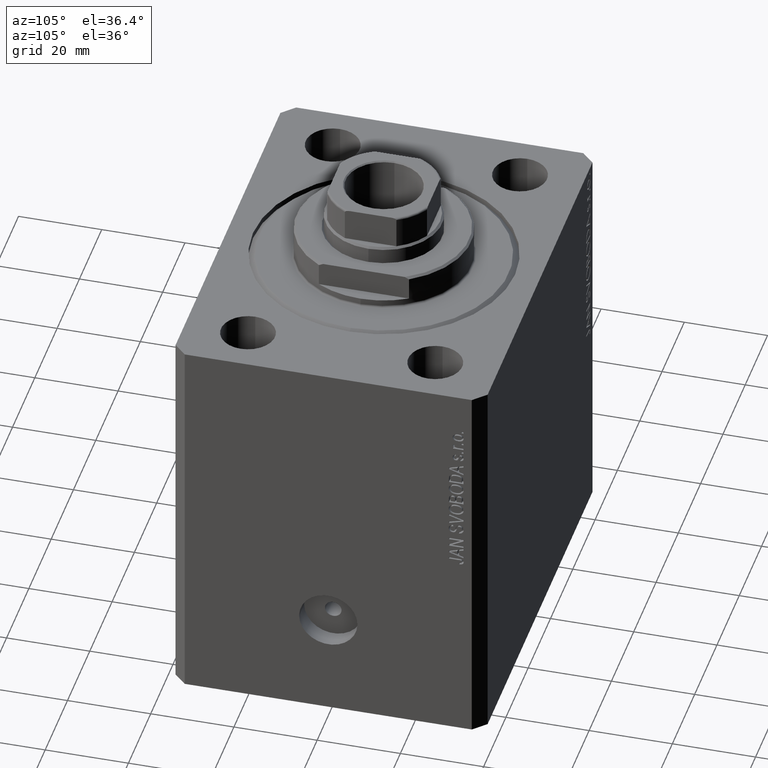
[diagram: clean part render]
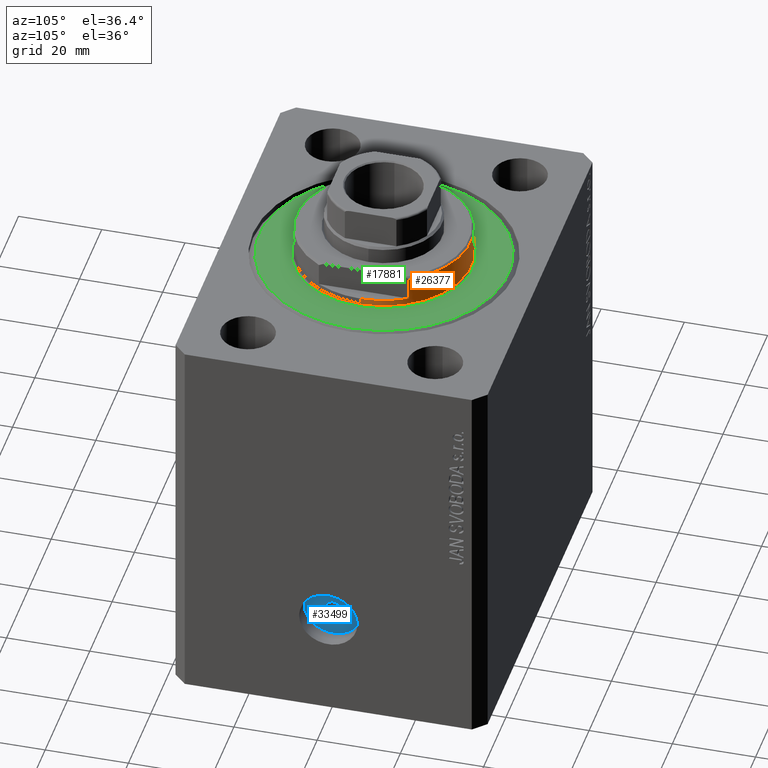
[diagram: same view with three faces highlighted in distinct colors, each labeled with its STEP entity id]
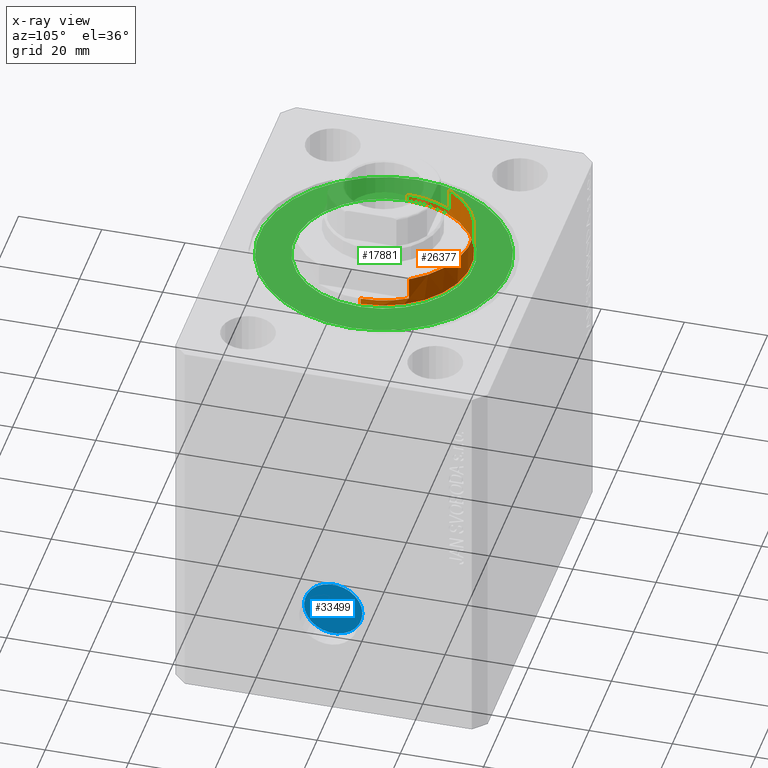
[diagram: x-ray of the same camera — body ghosted, the three highlighted faces saturated]
A machine part, auxiliary view with three faces highlighted in distinct colors.
The next image is the same camera in x-ray (body ghosted, the three faces saturated) — at least one of them is partly hidden behind the body in this view.
Their STEP definitions:

[orange] entity #26377 — the highlighted cylindrical surface (partial cylindrical patch) has radius 21 mm, axis along (0, 0, -1).
#318 = CARTESIAN_POINT ( 'NONE',  ( 18.00000000000000000, 10.81665382639197048, -2.000000000000000000 ) ) ;
#389 = DIRECTION ( 'NONE',  ( 1.000000000000000000, 0.000000000000000000, 0.000000000000000000 ) ) ;
#803 = VERTEX_POINT ( 'NONE', #26366 ) ;
#1753 = CARTESIAN_POINT ( 'NONE',  ( -18.00000000000000000, 10.81665382639197048, -7.499999999999989342 ) ) ;
#1844 = LINE ( 'NONE', #29599, #34539 ) ;
#1911 = EDGE_CURVE ( 'NONE', #24585, #28411, #6616, .T. ) ;
#2023 = DIRECTION ( 'NONE',  ( -0.000000000000000000, -0.000000000000000000, 1.000000000000000000 ) ) ;
#2455 = EDGE_CURVE ( 'NONE', #33654, #23959, #20351, .T. ) ;
#2980 = CARTESIAN_POINT ( 'NONE',  ( 21.00000000000000000, 0.000000000000000000, -8.000000000000000000 ) ) ;
#4105 = EDGE_CURVE ( 'NONE', #803, #23959, #41937, .T. ) ;
#5528 = CARTESIAN_POINT ( 'NONE',  ( 0.000000000000000000, 0.000000000000000000, -7.499999999999989342 ) ) ;
#6432 = ORIENTED_EDGE ( 'NONE', *, *, #43718, .F. ) ;
#6557 = VECTOR ( 'NONE', #2023, 1000.000000000000000 ) ;
#6616 = CIRCLE ( 'NONE', #22482, 21.00000000000000000 ) ;
#6709 = CARTESIAN_POINT ( 'NONE',  ( 21.00000000000000000, 0.000000000000000000, -0.5000000000000004441 ) ) ;
#7959 = CYLINDRICAL_SURFACE ( 'NONE', #19219, 21.00000000000000000 ) ;
#10887 = DIRECTION ( 'NONE',  ( -0.000000000000000000, -0.000000000000000000, 1.000000000000000000 ) ) ;
#11112 = CARTESIAN_POINT ( 'NONE',  ( 0.000000000000000000, 0.000000000000000000, -8.000000000000000000 ) ) ;
#11609 = CIRCLE ( 'NONE', #34631, 21.00000000000000000 ) ;
#13763 = CIRCLE ( 'NONE', #23136, 21.00000000000000000 ) ;
#15532 = CARTESIAN_POINT ( 'NONE',  ( 0.000000000000000000, 0.000000000000000000, -2.000000000000000000 ) ) ;
#16074 = ORIENTED_EDGE ( 'NONE', *, *, #2455, .F. ) ;
#16144 = DIRECTION ( 'NONE',  ( 0.000000000000000000, 0.000000000000000000, 1.000000000000000000 ) ) ;
#16975 = DIRECTION ( 'NONE',  ( -1.000000000000000000, 0.000000000000000000, 0.000000000000000000 ) ) ;
#19219 = AXIS2_PLACEMENT_3D ( 'NONE', #11112, #10887, #24691 ) ;
#20351 = LINE ( 'NONE', #2980, #25359 ) ;
#21543 = ORIENTED_EDGE ( 'NONE', *, *, #33029, .T. ) ;
#22074 = DIRECTION ( 'NONE',  ( 0.000000000000000000, 0.000000000000000000, -1.000000000000000000 ) ) ;
#22482 = AXIS2_PLACEMENT_3D ( 'NONE', #5528, #16144, #29901 ) ;
#22529 = AXIS2_PLACEMENT_3D ( 'NONE', #37809, #31292, #389 ) ;
#23023 = VERTEX_POINT ( 'NONE', #318 ) ;
#23136 = AXIS2_PLACEMENT_3D ( 'NONE', #27139, #26695, #16975 ) ;
#23208 = CARTESIAN_POINT ( 'NONE',  ( -21.00000000000000000, 2.571758278209441661E-15, -8.000000000000000000 ) ) ;
#23291 = ORIENTED_EDGE ( 'NONE', *, *, #44239, .F. ) ;
#23459 = CARTESIAN_POINT ( 'NONE',  ( 18.00000000000000000, 10.81665382639197048, -7.499999999999988454 ) ) ;
#23523 = ORIENTED_EDGE ( 'NONE', *, *, #43296, .T. ) ;
#23959 = VERTEX_POINT ( 'NONE', #6709 ) ;
#24268 = ORIENTED_EDGE ( 'NONE', *, *, #4105, .T. ) ;
#24585 = VERTEX_POINT ( 'NONE', #23459 ) ;
#24691 = DIRECTION ( 'NONE',  ( 1.000000000000000000, 0.000000000000000000, 0.000000000000000000 ) ) ;
#24801 = VERTEX_POINT ( 'NONE', #39384 ) ;
#25359 = VECTOR ( 'NONE', #37906, 1000.000000000000000 ) ;
#25959 = DIRECTION ( 'NONE',  ( -0.000000000000000000, -0.000000000000000000, 1.000000000000000000 ) ) ;
#26202 = LINE ( 'NONE', #43483, #6557 ) ;
#26239 = DIRECTION ( 'NONE',  ( -0.000000000000000000, -0.000000000000000000, 1.000000000000000000 ) ) ;
#26366 = CARTESIAN_POINT ( 'NONE',  ( -21.00000000000000000, 2.571758278209441661E-15, -0.5000000000000004441 ) ) ;
#26377 = ADVANCED_FACE ( 'NONE', ( #41763 ), #7959, .T. ) ;
#26695 = DIRECTION ( 'NONE',  ( 0.000000000000000000, 0.000000000000000000, -1.000000000000000000 ) ) ;
#27139 = CARTESIAN_POINT ( 'NONE',  ( 0.000000000000000000, 0.000000000000000000, -2.000000000000000000 ) ) ;
#28331 = CARTESIAN_POINT ( 'NONE',  ( -18.00000000000000000, 10.81665382639197048, -2.000000000000000000 ) ) ;
#28411 = VERTEX_POINT ( 'NONE', #1753 ) ;
#28836 = DIRECTION ( 'NONE',  ( -1.000000000000000000, 0.000000000000000000, 0.000000000000000000 ) ) ;
#29599 = CARTESIAN_POINT ( 'NONE',  ( 18.00000000000000000, 10.81665382639197048, -8.000000000000000000 ) ) ;
#29901 = DIRECTION ( 'NONE',  ( -1.000000000000000000, 0.000000000000000000, 0.000000000000000000 ) ) ;
#31292 = DIRECTION ( 'NONE',  ( -0.000000000000000000, -0.000000000000000000, -1.000000000000000000 ) ) ;
#33029 = EDGE_CURVE ( 'NONE', #24801, #803, #33320, .T. ) ;
#33320 = LINE ( 'NONE', #23208, #43143 ) ;
#33654 = VERTEX_POINT ( 'NONE', #39200 ) ;
#34539 = VECTOR ( 'NONE', #26239, 1000.000000000000000 ) ;
#34631 = AXIS2_PLACEMENT_3D ( 'NONE', #15532, #22074, #28836 ) ;
#35396 = VERTEX_POINT ( 'NONE', #28331 ) ;
#35867 = EDGE_CURVE ( 'NONE', #24585, #23023, #1844, .T. ) ;
#37809 = CARTESIAN_POINT ( 'NONE',  ( 0.000000000000000000, 0.000000000000000000, -0.5000000000000004441 ) ) ;
#37906 = DIRECTION ( 'NONE',  ( -0.000000000000000000, -0.000000000000000000, 1.000000000000000000 ) ) ;
#38215 = ORIENTED_EDGE ( 'NONE', *, *, #1911, .T. ) ;
#38542 = ORIENTED_EDGE ( 'NONE', *, *, #35867, .F. ) ;
#39200 = CARTESIAN_POINT ( 'NONE',  ( 21.00000000000000000, 0.000000000000000000, -2.000000000000000000 ) ) ;
#39384 = CARTESIAN_POINT ( 'NONE',  ( -21.00000000000000000, 2.571758278209441661E-15, -2.000000000000000000 ) ) ;
#40691 = EDGE_LOOP ( 'NONE', ( #6432, #21543, #24268, #16074, #23291, #38542, #38215, #23523 ) ) ;
#41763 = FACE_OUTER_BOUND ( 'NONE', #40691, .T. ) ;
#41937 = CIRCLE ( 'NONE', #22529, 21.00000000000000000 ) ;
#43143 = VECTOR ( 'NONE', #25959, 1000.000000000000000 ) ;
#43296 = EDGE_CURVE ( 'NONE', #28411, #35396, #26202, .T. ) ;
#43483 = CARTESIAN_POINT ( 'NONE',  ( -18.00000000000000000, 10.81665382639197048, -8.000000000000000000 ) ) ;
#43718 = EDGE_CURVE ( 'NONE', #24801, #35396, #13763, .T. ) ;
#44239 = EDGE_CURVE ( 'NONE', #23023, #33654, #11609, .T. ) ;

[blue] entity #33499 — the highlighted planar face has unit normal (1, -0, 0).
#824 = AXIS2_PLACEMENT_3D ( 'NONE', #44391, #43489, #2251 ) ;
#1199 = CARTESIAN_POINT ( 'NONE',  ( 45.50000000000026290, 1.042961394196528243E-13, -70.00000000000000000 ) ) ;
#2251 = DIRECTION ( 'NONE',  ( 1.288651725011342390E-14, 1.000000000000000000, 0.000000000000000000 ) ) ;
#2262 = DIRECTION ( 'NONE',  ( 1.000000000000000000, -1.334402673828349134E-14, 0.000000000000000000 ) ) ;
#2810 = EDGE_CURVE ( 'NONE', #14211, #32805, #13830, .T. ) ;
#5010 = ORIENTED_EDGE ( 'NONE', *, *, #30038, .T. ) ;
#7057 = CIRCLE ( 'NONE', #22197, 7.000000000000000000 ) ;
#7190 = ORIENTED_EDGE ( 'NONE', *, *, #44069, .T. ) ;
#9047 = FACE_OUTER_BOUND ( 'NONE', #12307, .T. ) ;
#9267 = DIRECTION ( 'NONE',  ( 1.334402673828349134E-14, 1.000000000000000000, 0.000000000000000000 ) ) ;
#11245 = CARTESIAN_POINT ( 'NONE',  ( 45.50000000000026290, 1.042961394196528243E-13, -70.00000000000000000 ) ) ;
#11349 = DIRECTION ( 'NONE',  ( 1.000000000000000000, -1.334402673828349134E-14, 0.000000000000000000 ) ) ;
#12202 = EDGE_LOOP ( 'NONE', ( #14406, #19539 ) ) ;
#12307 = EDGE_LOOP ( 'NONE', ( #7190, #5010 ) ) ;
#12745 = AXIS2_PLACEMENT_3D ( 'NONE', #1199, #11349, #25598 ) ;
#13830 = CIRCLE ( 'NONE', #32539, 1.999999999999996225 ) ;
#14211 = VERTEX_POINT ( 'NONE', #29368 ) ;
#14406 = ORIENTED_EDGE ( 'NONE', *, *, #2810, .F. ) ;
#18979 = DIRECTION ( 'NONE',  ( 1.288651725011342390E-14, 1.000000000000000000, 0.000000000000000000 ) ) ;
#19539 = ORIENTED_EDGE ( 'NONE', *, *, #23095, .F. ) ;
#20831 = AXIS2_PLACEMENT_3D ( 'NONE', #26455, #40125, #9267 ) ;
#22197 = AXIS2_PLACEMENT_3D ( 'NONE', #42631, #2262, #18979 ) ;
#22829 = PLANE ( 'NONE',  #20831 ) ;
#23050 = FACE_BOUND ( 'NONE', #12202, .T. ) ;
#23095 = EDGE_CURVE ( 'NONE', #32805, #14211, #35066, .T. ) ;
#25045 = DIRECTION ( 'NONE',  ( 1.387778780781448358E-14, 1.000000000000000000, 0.000000000000000000 ) ) ;
#25333 = CIRCLE ( 'NONE', #824, 7.000000000000000000 ) ;
#25598 = DIRECTION ( 'NONE',  ( 1.387778780781448358E-14, 1.000000000000000000, 0.000000000000000000 ) ) ;
#25624 = CARTESIAN_POINT ( 'NONE',  ( 45.50000000000035527, 7.000000000000103917, -70.00000000000000000 ) ) ;
#26455 = CARTESIAN_POINT ( 'NONE',  ( 45.50000000000026290, 1.042961394196528117E-13, -70.00000000000000000 ) ) ;
#26750 = CARTESIAN_POINT ( 'NONE',  ( 45.50000000000017053, -6.999999999999896083, -70.00000000000000000 ) ) ;
#28408 = DIRECTION ( 'NONE',  ( 1.000000000000000000, -1.334402673828349134E-14, 0.000000000000000000 ) ) ;
#29368 = CARTESIAN_POINT ( 'NONE',  ( 45.50000000000029132, 2.000000000000100364, -70.00000000000000000 ) ) ;
#30038 = EDGE_CURVE ( 'NONE', #43573, #40171, #7057, .T. ) ;
#32539 = AXIS2_PLACEMENT_3D ( 'NONE', #11245, #28408, #25045 ) ;
#32805 = VERTEX_POINT ( 'NONE', #43115 ) ;
#33499 = ADVANCED_FACE ( 'NONE', ( #23050, #9047 ), #22829, .T. ) ;
#35066 = CIRCLE ( 'NONE', #12745, 1.999999999999996225 ) ;
#40125 = DIRECTION ( 'NONE',  ( 1.000000000000000000, -1.334402673828349134E-14, 0.000000000000000000 ) ) ;
#40171 = VERTEX_POINT ( 'NONE', #25624 ) ;
#42631 = CARTESIAN_POINT ( 'NONE',  ( 45.50000000000026290, 1.042961394196528117E-13, -70.00000000000000000 ) ) ;
#43115 = CARTESIAN_POINT ( 'NONE',  ( 45.50000000000023448, -1.999999999999892086, -70.00000000000000000 ) ) ;
#43489 = DIRECTION ( 'NONE',  ( 1.000000000000000000, -1.334402673828349134E-14, 0.000000000000000000 ) ) ;
#43573 = VERTEX_POINT ( 'NONE', #26750 ) ;
#44069 = EDGE_CURVE ( 'NONE', #40171, #43573, #25333, .T. ) ;
#44391 = CARTESIAN_POINT ( 'NONE',  ( 45.50000000000026290, 1.042961394196528117E-13, -70.00000000000000000 ) ) ;

[green] entity #17881 — the highlighted planar face has unit normal (0, 0, -1).
#1150 = VERTEX_POINT ( 'NONE', #35955 ) ;
#1826 = AXIS2_PLACEMENT_3D ( 'NONE', #12532, #36394, #3037 ) ;
#3037 = DIRECTION ( 'NONE',  ( 1.000000000000000000, 0.000000000000000000, 0.000000000000000000 ) ) ;
#8302 = CIRCLE ( 'NONE', #1826, 21.50000000000000000 ) ;
#8439 = CARTESIAN_POINT ( 'NONE',  ( 30.00000000000002132, 0.000000000000000000, 0.000000000000000000 ) ) ;
#9012 = CARTESIAN_POINT ( 'NONE',  ( -30.00000000000002132, 3.765788907378112117E-15, 0.000000000000000000 ) ) ;
#10655 = DIRECTION ( 'NONE',  ( -0.000000000000000000, -0.000000000000000000, -1.000000000000000000 ) ) ;
#10796 = EDGE_LOOP ( 'NONE', ( #20648, #43437 ) ) ;
#11900 = AXIS2_PLACEMENT_3D ( 'NONE', #29735, #22532, #29070 ) ;
#12532 = CARTESIAN_POINT ( 'NONE',  ( 0.000000000000000000, 0.000000000000000000, 0.000000000000000000 ) ) ;
#14174 = AXIS2_PLACEMENT_3D ( 'NONE', #16775, #10655, #38141 ) ;
#14994 = EDGE_CURVE ( 'NONE', #19182, #22671, #31290, .T. ) ;
#15538 = FACE_OUTER_BOUND ( 'NONE', #10796, .T. ) ;
#16461 = VERTEX_POINT ( 'NONE', #39587 ) ;
#16775 = CARTESIAN_POINT ( 'NONE',  ( 0.000000000000000000, 0.000000000000000000, 0.000000000000000000 ) ) ;
#17074 = EDGE_CURVE ( 'NONE', #1150, #16461, #8302, .T. ) ;
#17881 = ADVANCED_FACE ( 'NONE', ( #25711, #15538 ), #23187, .F. ) ;
#18708 = CIRCLE ( 'NONE', #26642, 21.50000000000000000 ) ;
#19182 = VERTEX_POINT ( 'NONE', #8439 ) ;
#20522 = CARTESIAN_POINT ( 'NONE',  ( 0.000000000000000000, 0.000000000000000000, 0.000000000000000000 ) ) ;
#20564 = EDGE_CURVE ( 'NONE', #22671, #19182, #31445, .T. ) ;
#20648 = ORIENTED_EDGE ( 'NONE', *, *, #14994, .T. ) ;
#21725 = DIRECTION ( 'NONE',  ( -0.000000000000000000, -0.000000000000000000, -1.000000000000000000 ) ) ;
#22402 = CARTESIAN_POINT ( 'NONE',  ( 0.000000000000000000, 0.000000000000000000, 0.000000000000000000 ) ) ;
#22532 = DIRECTION ( 'NONE',  ( 0.000000000000000000, 0.000000000000000000, 1.000000000000000000 ) ) ;
#22671 = VERTEX_POINT ( 'NONE', #9012 ) ;
#23187 = PLANE ( 'NONE',  #11900 ) ;
#25288 = ORIENTED_EDGE ( 'NONE', *, *, #34188, .T. ) ;
#25711 = FACE_BOUND ( 'NONE', #25904, .T. ) ;
#25904 = EDGE_LOOP ( 'NONE', ( #41245, #25288 ) ) ;
#26642 = AXIS2_PLACEMENT_3D ( 'NONE', #20522, #34240, #41234 ) ;
#27711 = AXIS2_PLACEMENT_3D ( 'NONE', #22402, #21725, #35443 ) ;
#29070 = DIRECTION ( 'NONE',  ( 1.000000000000000000, 0.000000000000000000, -0.000000000000000000 ) ) ;
#29735 = CARTESIAN_POINT ( 'NONE',  ( 0.000000000000000000, 0.000000000000000000, 0.000000000000000000 ) ) ;
#31290 = CIRCLE ( 'NONE', #27711, 30.00000000000002132 ) ;
#31445 = CIRCLE ( 'NONE', #14174, 30.00000000000002132 ) ;
#34188 = EDGE_CURVE ( 'NONE', #16461, #1150, #18708, .T. ) ;
#34240 = DIRECTION ( 'NONE',  ( 0.000000000000000000, 0.000000000000000000, 1.000000000000000000 ) ) ;
#35443 = DIRECTION ( 'NONE',  ( 1.000000000000000000, 0.000000000000000000, 0.000000000000000000 ) ) ;
#35955 = CARTESIAN_POINT ( 'NONE',  ( 21.50000000000000000, 0.000000000000000000, -2.168404344971008868E-16 ) ) ;
#36394 = DIRECTION ( 'NONE',  ( 0.000000000000000000, 0.000000000000000000, 1.000000000000000000 ) ) ;
#38141 = DIRECTION ( 'NONE',  ( 1.000000000000000000, 0.000000000000000000, 0.000000000000000000 ) ) ;
#39587 = CARTESIAN_POINT ( 'NONE',  ( -21.50000000000000000, 2.632990618166809630E-15, -2.168404344971008868E-16 ) ) ;
#41234 = DIRECTION ( 'NONE',  ( 1.000000000000000000, 0.000000000000000000, 0.000000000000000000 ) ) ;
#41245 = ORIENTED_EDGE ( 'NONE', *, *, #17074, .T. ) ;
#43437 = ORIENTED_EDGE ( 'NONE', *, *, #20564, .T. ) ;